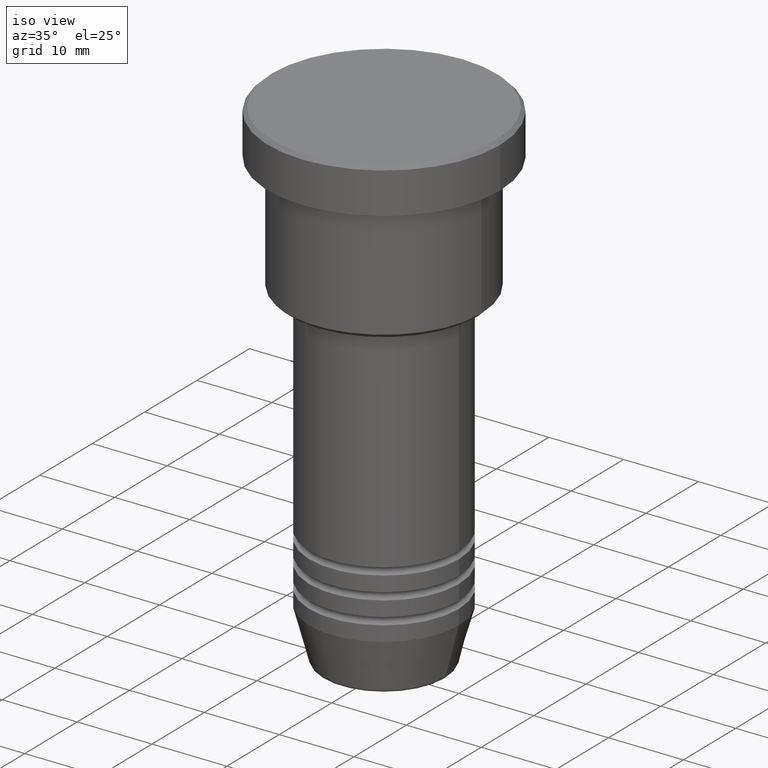
[diagram: clean part render]
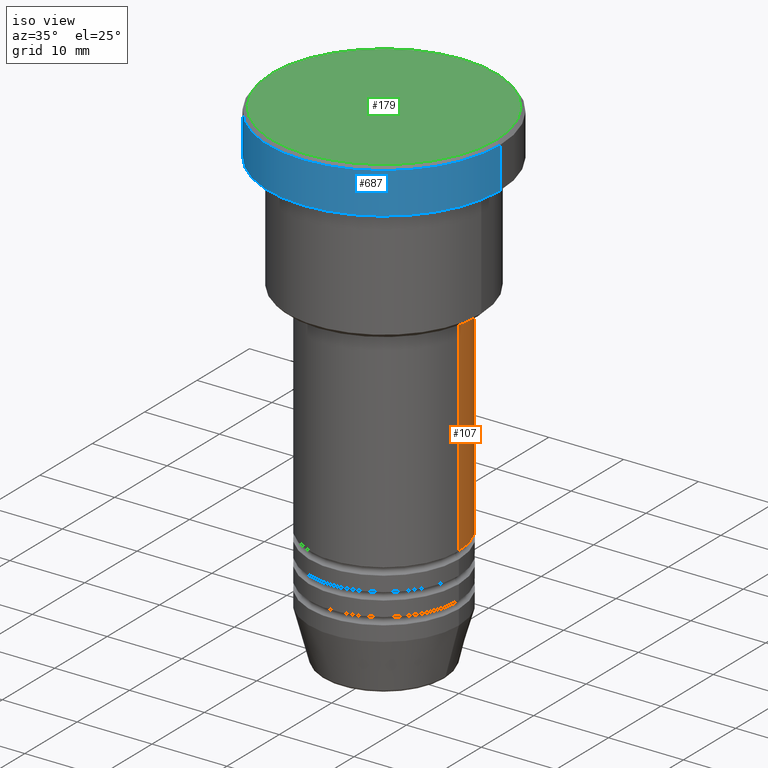
[diagram: same view with three faces highlighted in distinct colors, each labeled with its STEP entity id]
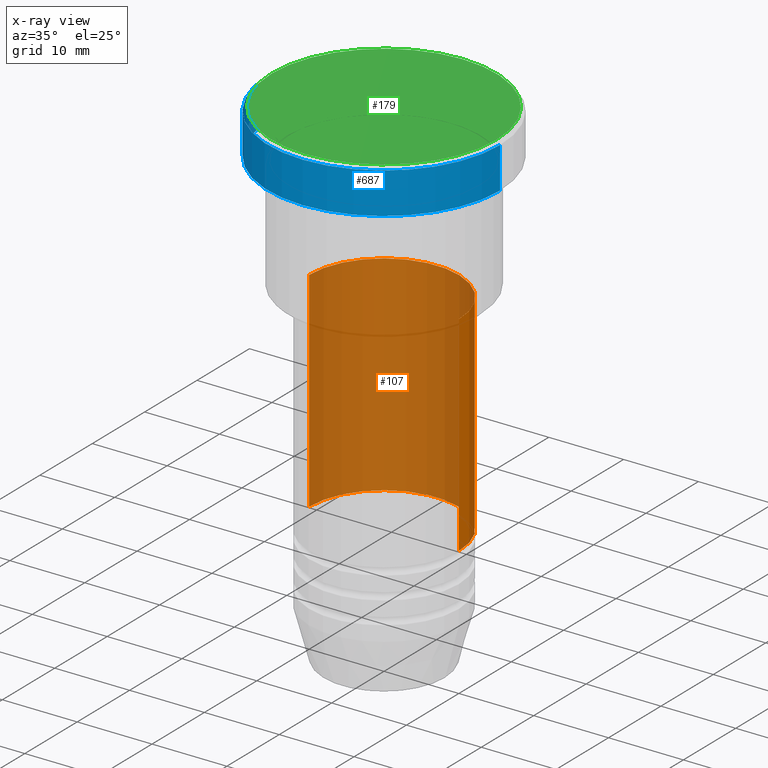
[diagram: x-ray of the same camera — body ghosted, the three highlighted faces saturated]
A machine part, iso view with three faces highlighted in distinct colors.
The next image is the same camera in x-ray (body ghosted, the three faces saturated) — at least one of them is partly hidden behind the body in this view.
Their STEP definitions:

[orange] entity #107 — the highlighted cylindrical surface (partial cylindrical patch) has radius 10 mm, axis along (-0, -0, 1).
#55 = VERTEX_POINT ( 'NONE', #127 ) ;
#107 = ADVANCED_FACE ( 'NONE', ( #947 ), #118, .T. ) ;
#118 = CYLINDRICAL_SURFACE ( 'NONE', #189, 10.00000000000000000 ) ;
#127 = CARTESIAN_POINT ( 'NONE',  ( 10.00000000000000000, 0.000000000000000000, -50.99999999999997868 ) ) ;
#133 = CARTESIAN_POINT ( 'NONE',  ( 0.000000000000000000, 0.000000000000000000, 0.000000000000000000 ) ) ;
#183 = EDGE_LOOP ( 'NONE', ( #1152, #876, #1126, #584 ) ) ;
#189 = AXIS2_PLACEMENT_3D ( 'NONE', #133, #498, #936 ) ;
#201 = DIRECTION ( 'NONE',  ( 1.000000000000000000, 0.000000000000000000, 0.000000000000000000 ) ) ;
#206 = CIRCLE ( 'NONE', #508, 10.00000000000000000 ) ;
#334 = LINE ( 'NONE', #1145, #1134 ) ;
#340 = CARTESIAN_POINT ( 'NONE',  ( 10.00000000000000000, 0.000000000000000000, -23.00000000000000000 ) ) ;
#386 = CARTESIAN_POINT ( 'NONE',  ( 0.000000000000000000, 0.000000000000000000, -50.99999999999997868 ) ) ;
#433 = CARTESIAN_POINT ( 'NONE',  ( -10.00000000000000000, 1.224646799147353256E-15, -23.00000000000000000 ) ) ;
#498 = DIRECTION ( 'NONE',  ( -0.000000000000000000, -0.000000000000000000, 1.000000000000000000 ) ) ;
#508 = AXIS2_PLACEMENT_3D ( 'NONE', #1168, #783, #710 ) ;
#537 = VERTEX_POINT ( 'NONE', #557 ) ;
#557 = CARTESIAN_POINT ( 'NONE',  ( -10.00000000000000000, 1.224646799147353256E-15, -50.99999999999997868 ) ) ;
#584 = ORIENTED_EDGE ( 'NONE', *, *, #722, .F. ) ;
#592 = DIRECTION ( 'NONE',  ( -0.000000000000000000, -0.000000000000000000, 1.000000000000000000 ) ) ;
#668 = CARTESIAN_POINT ( 'NONE',  ( 10.00000000000000000, 0.000000000000000000, 0.000000000000000000 ) ) ;
#710 = DIRECTION ( 'NONE',  ( 1.000000000000000000, 0.000000000000000000, 0.000000000000000000 ) ) ;
#722 = EDGE_CURVE ( 'NONE', #55, #814, #756, .T. ) ;
#756 = LINE ( 'NONE', #668, #944 ) ;
#783 = DIRECTION ( 'NONE',  ( -0.000000000000000000, -0.000000000000000000, 1.000000000000000000 ) ) ;
#790 = AXIS2_PLACEMENT_3D ( 'NONE', #386, #840, #201 ) ;
#805 = EDGE_CURVE ( 'NONE', #814, #1131, #206, .T. ) ;
#814 = VERTEX_POINT ( 'NONE', #340 ) ;
#840 = DIRECTION ( 'NONE',  ( -0.000000000000000000, -0.000000000000000000, 1.000000000000000000 ) ) ;
#844 = EDGE_CURVE ( 'NONE', #537, #1131, #334, .T. ) ;
#876 = ORIENTED_EDGE ( 'NONE', *, *, #844, .T. ) ;
#887 = CIRCLE ( 'NONE', #790, 10.00000000000000000 ) ;
#933 = DIRECTION ( 'NONE',  ( -0.000000000000000000, -0.000000000000000000, 1.000000000000000000 ) ) ;
#936 = DIRECTION ( 'NONE',  ( 1.000000000000000000, 0.000000000000000000, 0.000000000000000000 ) ) ;
#944 = VECTOR ( 'NONE', #933, 1000.000000000000000 ) ;
#947 = FACE_OUTER_BOUND ( 'NONE', #183, .T. ) ;
#1037 = EDGE_CURVE ( 'NONE', #55, #537, #887, .T. ) ;
#1126 = ORIENTED_EDGE ( 'NONE', *, *, #805, .F. ) ;
#1131 = VERTEX_POINT ( 'NONE', #433 ) ;
#1134 = VECTOR ( 'NONE', #592, 1000.000000000000000 ) ;
#1145 = CARTESIAN_POINT ( 'NONE',  ( -10.00000000000000000, 1.224646799147353256E-15, 0.000000000000000000 ) ) ;
#1152 = ORIENTED_EDGE ( 'NONE', *, *, #1037, .T. ) ;
#1168 = CARTESIAN_POINT ( 'NONE',  ( 0.000000000000000000, 0.000000000000000000, -23.00000000000000000 ) ) ;

[blue] entity #687 — the highlighted cylindrical surface (partial cylindrical patch) has radius 15.5 mm, axis along (-0, -0, 1).
#10 = LINE ( 'NONE', #900, #928 ) ;
#13 = DIRECTION ( 'NONE',  ( 1.000000000000000000, 0.000000000000000000, 0.000000000000000000 ) ) ;
#24 = DIRECTION ( 'NONE',  ( -0.000000000000000000, -0.000000000000000000, 1.000000000000000000 ) ) ;
#28 = DIRECTION ( 'NONE',  ( 1.000000000000000000, 0.000000000000000000, 0.000000000000000000 ) ) ;
#39 = CARTESIAN_POINT ( 'NONE',  ( -15.50000000000000000, 1.898202538678397557E-15, -5.999999999999995559 ) ) ;
#91 = VECTOR ( 'NONE', #776, 1000.000000000000000 ) ;
#103 = VERTEX_POINT ( 'NONE', #39 ) ;
#122 = CARTESIAN_POINT ( 'NONE',  ( 0.000000000000000000, 0.000000000000000000, 0.000000000000000000 ) ) ;
#162 = CARTESIAN_POINT ( 'NONE',  ( 0.000000000000000000, 0.000000000000000000, -5.999999999999995559 ) ) ;
#204 = CYLINDRICAL_SURFACE ( 'NONE', #1104, 15.50000000000000000 ) ;
#278 = EDGE_CURVE ( 'NONE', #322, #951, #10, .T. ) ;
#322 = VERTEX_POINT ( 'NONE', #646 ) ;
#360 = ORIENTED_EDGE ( 'NONE', *, *, #760, .T. ) ;
#370 = AXIS2_PLACEMENT_3D ( 'NONE', #1091, #539, #13 ) ;
#402 = CARTESIAN_POINT ( 'NONE',  ( 15.50000000000000000, 0.000000000000000000, -0.5000000000000057732 ) ) ;
#505 = LINE ( 'NONE', #865, #91 ) ;
#539 = DIRECTION ( 'NONE',  ( 0.000000000000000000, 0.000000000000000000, -1.000000000000000000 ) ) ;
#541 = ORIENTED_EDGE ( 'NONE', *, *, #278, .T. ) ;
#566 = EDGE_CURVE ( 'NONE', #951, #846, #1046, .T. ) ;
#617 = AXIS2_PLACEMENT_3D ( 'NONE', #162, #884, #875 ) ;
#646 = CARTESIAN_POINT ( 'NONE',  ( 15.50000000000000000, 0.000000000000000000, -5.999999999999995559 ) ) ;
#687 = ADVANCED_FACE ( 'NONE', ( #1028 ), #204, .T. ) ;
#695 = EDGE_LOOP ( 'NONE', ( #883, #360, #541, #970 ) ) ;
#716 = CIRCLE ( 'NONE', #617, 15.50000000000000000 ) ;
#760 = EDGE_CURVE ( 'NONE', #103, #322, #716, .T. ) ;
#776 = DIRECTION ( 'NONE',  ( -0.000000000000000000, -0.000000000000000000, 1.000000000000000000 ) ) ;
#827 = DIRECTION ( 'NONE',  ( -0.000000000000000000, -0.000000000000000000, 1.000000000000000000 ) ) ;
#846 = VERTEX_POINT ( 'NONE', #955 ) ;
#865 = CARTESIAN_POINT ( 'NONE',  ( -15.50000000000000000, 1.898202538678397557E-15, 0.000000000000000000 ) ) ;
#866 = EDGE_CURVE ( 'NONE', #103, #846, #505, .T. ) ;
#875 = DIRECTION ( 'NONE',  ( 1.000000000000000000, 0.000000000000000000, 0.000000000000000000 ) ) ;
#883 = ORIENTED_EDGE ( 'NONE', *, *, #866, .F. ) ;
#884 = DIRECTION ( 'NONE',  ( -0.000000000000000000, -0.000000000000000000, 1.000000000000000000 ) ) ;
#900 = CARTESIAN_POINT ( 'NONE',  ( 15.50000000000000000, 0.000000000000000000, 0.000000000000000000 ) ) ;
#928 = VECTOR ( 'NONE', #827, 1000.000000000000000 ) ;
#951 = VERTEX_POINT ( 'NONE', #402 ) ;
#955 = CARTESIAN_POINT ( 'NONE',  ( -15.50000000000000000, 1.898202538678397557E-15, -0.5000000000000057732 ) ) ;
#970 = ORIENTED_EDGE ( 'NONE', *, *, #566, .T. ) ;
#1028 = FACE_OUTER_BOUND ( 'NONE', #695, .T. ) ;
#1046 = CIRCLE ( 'NONE', #370, 15.50000000000000000 ) ;
#1091 = CARTESIAN_POINT ( 'NONE',  ( 0.000000000000000000, 0.000000000000000000, -0.5000000000000057732 ) ) ;
#1104 = AXIS2_PLACEMENT_3D ( 'NONE', #122, #24, #28 ) ;

[green] entity #179 — the highlighted planar face has unit normal (0, -0, 1).
#78 = EDGE_LOOP ( 'NONE', ( #787, #898 ) ) ;
#112 = AXIS2_PLACEMENT_3D ( 'NONE', #447, #600, #1057 ) ;
#129 = CIRCLE ( 'NONE', #1160, 14.99999999999999289 ) ;
#179 = ADVANCED_FACE ( 'NONE', ( #966 ), #801, .T. ) ;
#182 = CARTESIAN_POINT ( 'NONE',  ( 14.99999999999999289, 1.867586368699713376E-15, 0.000000000000000000 ) ) ;
#332 = DIRECTION ( 'NONE',  ( -0.000000000000000000, -0.000000000000000000, 1.000000000000000000 ) ) ;
#339 = VERTEX_POINT ( 'NONE', #182 ) ;
#344 = AXIS2_PLACEMENT_3D ( 'NONE', #1080, #451, #825 ) ;
#447 = CARTESIAN_POINT ( 'NONE',  ( 0.000000000000000000, 0.000000000000000000, 0.000000000000000000 ) ) ;
#451 = DIRECTION ( 'NONE',  ( -0.000000000000000000, -0.000000000000000000, 1.000000000000000000 ) ) ;
#462 = CIRCLE ( 'NONE', #344, 14.99999999999999289 ) ;
#553 = EDGE_CURVE ( 'NONE', #339, #1177, #462, .T. ) ;
#600 = DIRECTION ( 'NONE',  ( 0.000000000000000000, -0.000000000000000000, 1.000000000000000000 ) ) ;
#701 = CARTESIAN_POINT ( 'NONE',  ( -14.99999999999999289, 0.000000000000000000, 0.000000000000000000 ) ) ;
#773 = DIRECTION ( 'NONE',  ( 1.000000000000000000, 0.000000000000000000, 0.000000000000000000 ) ) ;
#787 = ORIENTED_EDGE ( 'NONE', *, *, #1075, .T. ) ;
#801 = PLANE ( 'NONE',  #112 ) ;
#825 = DIRECTION ( 'NONE',  ( 1.000000000000000000, 0.000000000000000000, 0.000000000000000000 ) ) ;
#857 = CARTESIAN_POINT ( 'NONE',  ( 0.000000000000000000, 0.000000000000000000, 0.000000000000000000 ) ) ;
#898 = ORIENTED_EDGE ( 'NONE', *, *, #553, .T. ) ;
#966 = FACE_OUTER_BOUND ( 'NONE', #78, .T. ) ;
#1057 = DIRECTION ( 'NONE',  ( 1.000000000000000000, 0.000000000000000000, 0.000000000000000000 ) ) ;
#1075 = EDGE_CURVE ( 'NONE', #1177, #339, #129, .T. ) ;
#1080 = CARTESIAN_POINT ( 'NONE',  ( 0.000000000000000000, 0.000000000000000000, 0.000000000000000000 ) ) ;
#1160 = AXIS2_PLACEMENT_3D ( 'NONE', #857, #332, #773 ) ;
#1177 = VERTEX_POINT ( 'NONE', #701 ) ;